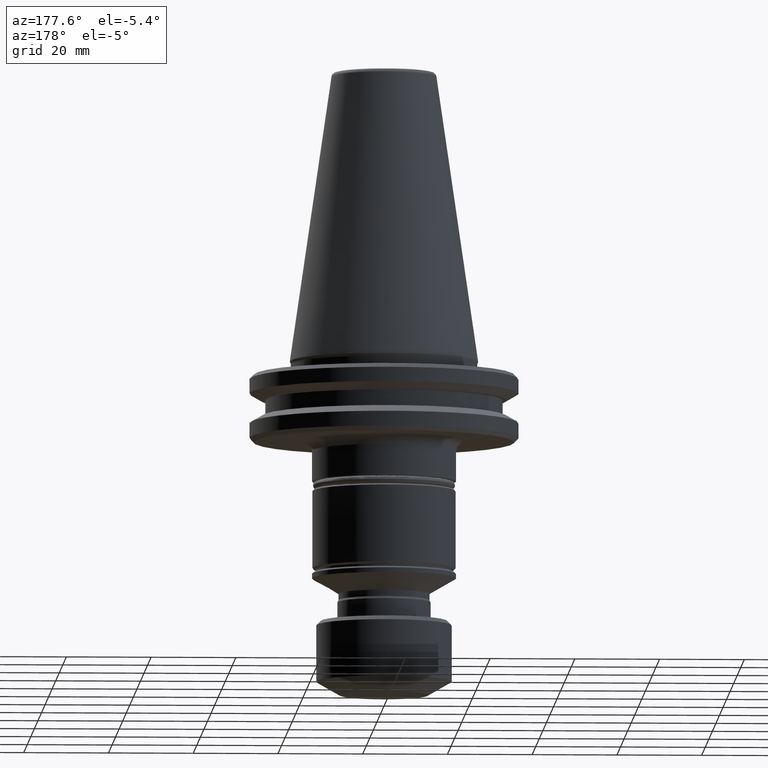
[diagram: clean part render]
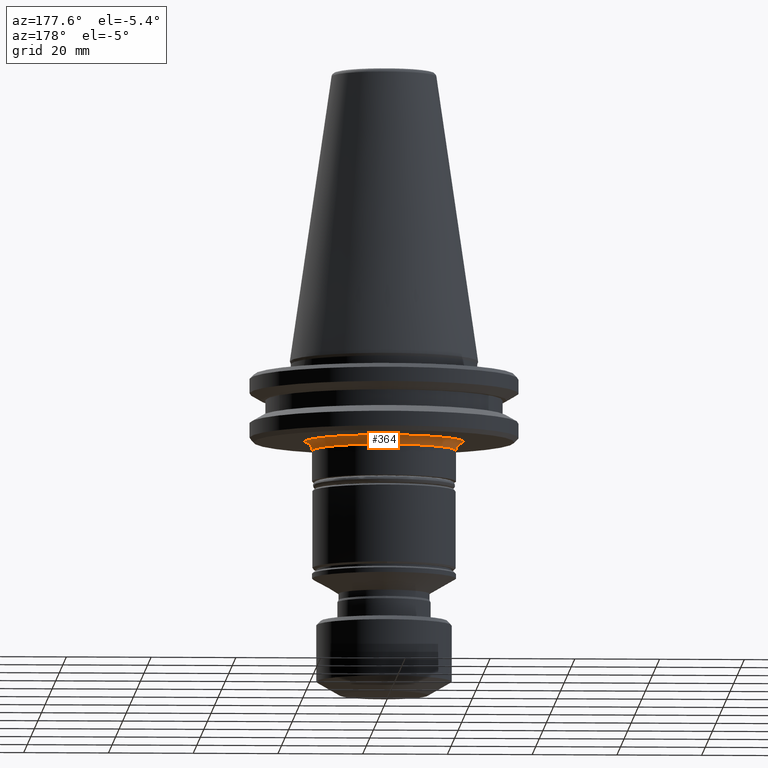
[diagram: same view with one face highlighted and labeled with its STEP entity id]
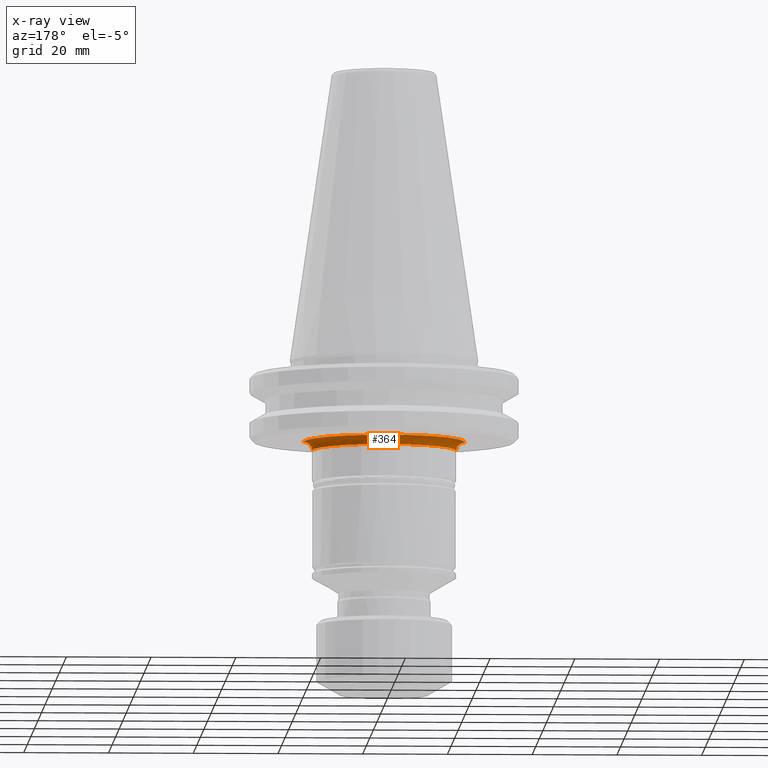
[diagram: x-ray of the same camera — body ghosted, the highlighted face saturated]
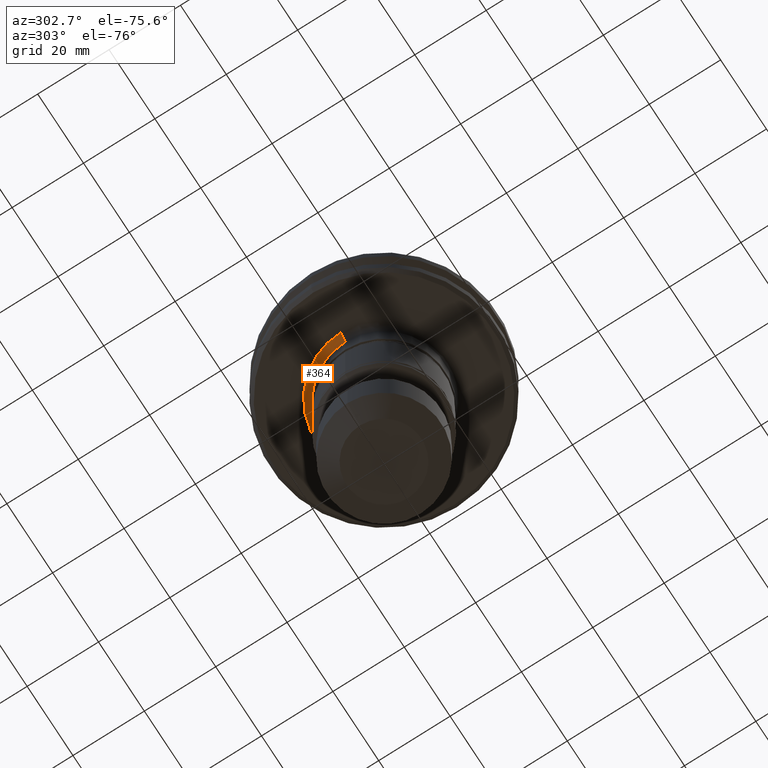
[diagram: same view with one face highlighted and labeled with its STEP entity id]
A machine part, auxiliary view. The second image highlights one B-rep face of the part: STEP entity #364.
The next image is the same camera in x-ray: the body ghosted, the highlighted face saturated — about 0% of this face is hidden behind the body in this view.
A second angle (auxiliary view) of the same face is appended — the face is thin or edge-on in the first view.
In plain terms, the highlighted face is a freeform B-spline surface patch.
Its self-contained STEP definition (entity closure, byte-faithful):
#72 = FACE_OUTER_BOUND ( 'NONE', #513, .T. ) ;
#73 = CARTESIAN_POINT ( 'NONE',  ( -19.00000000000000400, 0.0000000000000000000, -19.10000000000000500 ) ) ;
#74 = CARTESIAN_POINT ( 'NONE',  ( -19.00000000000000000, 1.244179201183338600, -19.10000000000017600 ) ) ;
#76 = CARTESIAN_POINT ( 'NONE',  ( -18.87782708659221600, 2.485356602416213300, -19.10000000000017900 ) ) ;
#78 = CARTESIAN_POINT ( 'NONE',  ( -18.39201356873054400, 4.928075634196662100, -19.10000000000017900 ) ) ;
#80 = CARTESIAN_POINT ( 'NONE',  ( -18.03022591264031900, 6.120482537481100500, -19.10000000000017600 ) ) ;
#81 = CARTESIAN_POINT ( 'NONE',  ( -17.07719632278859500, 8.421487892392312000, -19.10000000000017900 ) ) ;
#82 = CARTESIAN_POINT ( 'NONE',  ( -16.48973326834670800, 9.520401761019400100, -19.10000000000017200 ) ) ;
#84 = CARTESIAN_POINT ( 'NONE',  ( -15.10611199915001800, 11.59126709372549000, -19.10000000000017900 ) ) ;
#87 = CARTESIAN_POINT ( 'NONE',  ( -14.31554942206875400, 12.55445728403858800, -19.10000000000017600 ) ) ;
#88 = CARTESIAN_POINT ( 'NONE',  ( -12.55450826302005800, 14.31560040105022200, -19.10000000000017600 ) ) ;
#91 = CARTESIAN_POINT ( 'NONE',  ( -11.59122703977451800, 15.10605205422009300, -19.10000000000017600 ) ) ;
#95 = CARTESIAN_POINT ( 'NONE',  ( -9.520441814970373800, 16.48979321327663100, -19.10000000000017600 ) ) ;
#99 = CARTESIAN_POINT ( 'NONE',  ( -8.421460302822186600, 17.07712971551056600, -19.10000000000017600 ) ) ;
#103 = EDGE_CURVE ( 'NONE', #1698, #417, #1273, .T. ) ;
#105 = CARTESIAN_POINT ( 'NONE',  ( -6.120510127051226800, 18.03029251991833700, -19.10000000000017900 ) ) ;
#108 = CARTESIAN_POINT ( 'NONE',  ( -4.928061569151371800, 18.39194285884572400, -19.10000000000017900 ) ) ;
#111 = CARTESIAN_POINT ( 'NONE',  ( -2.485370667461509300, 18.87789779647703600, -19.10000000000017900 ) ) ;
#112 = CARTESIAN_POINT ( 'NONE',  ( -1.245280193138510000, 18.99996395241536000, -19.10000000000017200 ) ) ;
#113 = CARTESIAN_POINT ( 'NONE',  ( 1.245280193138511800, 19.00003604758465100, -19.10000000000017900 ) ) ;
#115 = CARTESIAN_POINT ( 'NONE',  ( 2.485356602378301400, 18.87782708659851100, -19.10000000000017900 ) ) ;
#116 = CARTESIAN_POINT ( 'NONE',  ( 4.928075634234569500, 18.39201356872425200, -19.10000000000017600 ) ) ;
#117 = CARTESIAN_POINT ( 'NONE',  ( 6.120482537460232700, 18.03022591264623700, -19.10000000000018300 ) ) ;
#118 = CARTESIAN_POINT ( 'NONE',  ( 8.421487892413182400, 17.07719632278267200, -19.10000000000017900 ) ) ;
#121 = CARTESIAN_POINT ( 'NONE',  ( 9.520401761022892400, 16.48973326834566000, -19.10000000000018300 ) ) ;
#123 = CARTESIAN_POINT ( 'NONE',  ( 11.59126709372199200, 15.10611199915108000, -19.10000000000017600 ) ) ;
#126 = CARTESIAN_POINT ( 'NONE',  ( 12.55445728402931700, 14.31554942207802100, -19.10000000000017900 ) ) ;
#128 = CARTESIAN_POINT ( 'NONE',  ( 14.31560040105949100, 12.55450826301078500, -19.10000000000017600 ) ) ;
#132 = CARTESIAN_POINT ( 'NONE',  ( 15.10605205420487500, 11.59122703979537400, -19.10000000000017600 ) ) ;
#133 = CARTESIAN_POINT ( 'NONE',  ( 16.48979321329185100, 9.520441814949510500, -19.10000000000017900 ) ) ;
#137 = CARTESIAN_POINT ( 'NONE',  ( 17.07712971551418200, 8.421460302813475400, -19.10000000000017900 ) ) ;
#138 = CARTESIAN_POINT ( 'NONE',  ( 18.03029251991472400, 6.120510127059945100, -19.10000000000017900 ) ) ;
#141 = CARTESIAN_POINT ( 'NONE',  ( 18.39194285884573400, 4.928061569151315000, -19.10000000000017900 ) ) ;
#142 = CARTESIAN_POINT ( 'NONE',  ( 18.87789779647701800, 2.485370667461574100, -19.10000000000017200 ) ) ;
#147 = CARTESIAN_POINT ( 'NONE',  ( 19.00000000000000400, 2.326828918379971400E-015, -19.10000000000017600 ) ) ;
#151 = CARTESIAN_POINT ( 'NONE',  ( 19.00000000000000400, 1.244914304450478900, -19.10000000000017900 ) ) ;
#153 = ORIENTED_EDGE ( 'NONE', *, *, #712, .T. ) ;
#330 = AXIS2_PLACEMENT_3D ( 'NONE', #1618, #1543, #1537 ) ;
#364 = ADVANCED_FACE ( 'NONE', ( #72 ), #392, .F. ) ;
#392 =( BOUNDED_SURFACE ( )  B_SPLINE_SURFACE ( 3, 3, ( 
 ( #1277, #1279, #1261, #1255 ),
 ( #1254, #1250, #1247, #1244 ),
 ( #1243, #1241, #1239, #1238 ),
 ( #1237, #1236, #1232, #1231 ) ),
 .UNSPECIFIED., .F., .F., .F. ) 
 B_SPLINE_SURFACE_WITH_KNOTS ( ( 4, 4 ),
 ( 4, 4 ),
 ( 0.0000000000000000000, 1.000000000000000000 ),
 ( 0.0000000000000000000, 1.000000000000000000 ),
 .UNSPECIFIED. ) 
 GEOMETRIC_REPRESENTATION_ITEM ( )  RATIONAL_B_SPLINE_SURFACE ( (
 ( 1.000000000000000000, 0.3333333333333334300, 0.3333333333333334300, 1.000000000000000000),
 ( 0.8047378541243649400, 0.2682459513747884100, 0.2682459513747884100, 0.8047378541243649400),
 ( 0.8047378541243649400, 0.2682459513747884100, 0.2682459513747884100, 0.8047378541243649400),
 ( 1.000000000000000000, 0.3333333333333334300, 0.3333333333333334300, 1.000000000000000000) ) ) 
 REPRESENTATION_ITEM ( '' )  SURFACE ( )  );
#417 = VERTEX_POINT ( 'NONE', #1181 ) ;
#432 = CIRCLE ( 'NONE', #794, 17.00000000000000000 ) ;
#513 = EDGE_LOOP ( 'NONE', ( #1753, #153, #584, #1534 ) ) ;
#565 = DIRECTION ( 'NONE',  ( -1.000000000000000000, 0.0000000000000000000, 0.0000000000000000000 ) ) ;
#568 = DIRECTION ( 'NONE',  ( 0.0000000000000000000, 0.0000000000000000000, -1.000000000000000000 ) ) ;
#572 = CARTESIAN_POINT ( 'NONE',  ( 0.0000000000000000000, 0.0000000000000000000, -21.10000000000000900 ) ) ;
#584 = ORIENTED_EDGE ( 'NONE', *, *, #951, .F. ) ;
#604 = B_SPLINE_CURVE_WITH_KNOTS ( 'NONE', 3,
 ( #147, #151, #142, #141, #138, #137, #133, #132, #128, #126, #123, #121, #118, #117, #116, #115, #113, #112, #111, #108, #105, #99, #95, #91, #88, #87, #84, #82, #81, #80, #78, #76, #74, #73 ),
 .UNSPECIFIED., .F., .F.,
 ( 4, 2, 2, 2, 2, 2, 2, 2, 2, 2, 2, 2, 2, 2, 2, 2, 4 ),
 ( 0.0000000000000000000, 0.06250000000000004200, 0.1250000000000000800, 0.1875000000000001100, 0.2500000000000001700, 0.3125000000000001100, 0.3750000000000000600, 0.4375000000000000600, 0.5000000000000001100, 0.5625000000000001100, 0.6250000000000002200, 0.6875000000000002200, 0.7500000000000002200, 0.8125000000000002200, 0.8750000000000001100, 0.9375000000000001100, 1.000000000000000000 ),
 .UNSPECIFIED. ) ;
#611 = VERTEX_POINT ( 'NONE', #1006 ) ;
#711 = CARTESIAN_POINT ( 'NONE',  ( 17.00000000000000000, 0.0000000000000000000, -21.10000000000000900 ) ) ;
#712 = EDGE_CURVE ( 'NONE', #611, #1743, #821, .T. ) ;
#778 = AXIS2_PLACEMENT_3D ( 'NONE', #856, #853, #851 ) ;
#794 = AXIS2_PLACEMENT_3D ( 'NONE', #572, #568, #565 ) ;
#801 = CARTESIAN_POINT ( 'NONE',  ( -19.00000000000000400, 0.0000000000000000000, -19.10000000000000500 ) ) ;
#821 = CIRCLE ( 'NONE', #778, 2.000000000000001800 ) ;
#851 = DIRECTION ( 'NONE',  ( 1.000000000000000000, 1.224646799147351500E-016, 0.0000000000000000000 ) ) ;
#853 = DIRECTION ( 'NONE',  ( 1.224646799147353200E-016, -1.000000000000000000, 0.0000000000000000000 ) ) ;
#856 = CARTESIAN_POINT ( 'NONE',  ( 19.00000000000000400, 2.326828918379971400E-015, -21.10000000000000900 ) ) ;
#951 = EDGE_CURVE ( 'NONE', #417, #1743, #432, .T. ) ;
#1006 = CARTESIAN_POINT ( 'NONE',  ( 19.00000000000000400, 2.326828918379971400E-015, -19.10000000000017600 ) ) ;
#1181 = CARTESIAN_POINT ( 'NONE',  ( -17.00000000000000000, 2.081899558550500300E-015, -21.10000000000000900 ) ) ;
#1231 = CARTESIAN_POINT ( 'NONE',  ( 17.00000000000000000, 2.081899558550500300E-015, -21.10000000000000900 ) ) ;
#1232 = CARTESIAN_POINT ( 'NONE',  ( 16.99999999999999600, 33.99999999999999300, -21.10000000000000900 ) ) ;
#1236 = CARTESIAN_POINT ( 'NONE',  ( -17.00000000000000000, 33.99999999999999300, -21.10000000000000900 ) ) ;
#1237 = CARTESIAN_POINT ( 'NONE',  ( -17.00000000000000000, 0.0000000000000000000, -21.10000000000000900 ) ) ;
#1238 = CARTESIAN_POINT ( 'NONE',  ( 17.00000000000000000, 2.081899558550500700E-015, -19.92842712474619700 ) ) ;
#1239 = CARTESIAN_POINT ( 'NONE',  ( 17.00000000000000000, 34.00000000000000000, -19.92842712474619700 ) ) ;
#1241 = CARTESIAN_POINT ( 'NONE',  ( -17.00000000000000400, 34.00000000000000000, -19.92842712474619700 ) ) ;
#1243 = CARTESIAN_POINT ( 'NONE',  ( -17.00000000000000000, 0.0000000000000000000, -19.92842712474619700 ) ) ;
#1244 = CARTESIAN_POINT ( 'NONE',  ( 17.82842712474619200, 2.183352621215227800E-015, -19.10000000000000500 ) ) ;
#1247 = CARTESIAN_POINT ( 'NONE',  ( 17.82842712474618500, 35.65685424949236900, -19.10000000000000100 ) ) ;
#1250 = CARTESIAN_POINT ( 'NONE',  ( -17.82842712474618800, 35.65685424949236900, -19.10000000000000100 ) ) ;
#1254 = CARTESIAN_POINT ( 'NONE',  ( -17.82842712474619200, 0.0000000000000000000, -19.10000000000000500 ) ) ;
#1255 = CARTESIAN_POINT ( 'NONE',  ( 19.00000000000000400, 2.326828918379971400E-015, -19.10000000000000500 ) ) ;
#1261 = CARTESIAN_POINT ( 'NONE',  ( 19.00000000000000000, 38.00000000000000000, -19.10000000000000900 ) ) ;
#1273 = CIRCLE ( 'NONE', #330, 2.000000000000001800 ) ;
#1277 = CARTESIAN_POINT ( 'NONE',  ( -19.00000000000000400, 0.0000000000000000000, -19.10000000000000500 ) ) ;
#1279 = CARTESIAN_POINT ( 'NONE',  ( -19.00000000000000400, 38.00000000000000000, -19.10000000000000900 ) ) ;
#1419 = EDGE_CURVE ( 'NONE', #611, #1698, #604, .T. ) ;
#1534 = ORIENTED_EDGE ( 'NONE', *, *, #103, .F. ) ;
#1537 = DIRECTION ( 'NONE',  ( -1.000000000000000000, 0.0000000000000000000, 0.0000000000000000000 ) ) ;
#1543 = DIRECTION ( 'NONE',  ( 0.0000000000000000000, 1.000000000000000000, 0.0000000000000000000 ) ) ;
#1618 = CARTESIAN_POINT ( 'NONE',  ( -19.00000000000000400, 0.0000000000000000000, -21.10000000000000900 ) ) ;
#1698 = VERTEX_POINT ( 'NONE', #801 ) ;
#1743 = VERTEX_POINT ( 'NONE', #711 ) ;
#1753 = ORIENTED_EDGE ( 'NONE', *, *, #1419, .F. ) ;